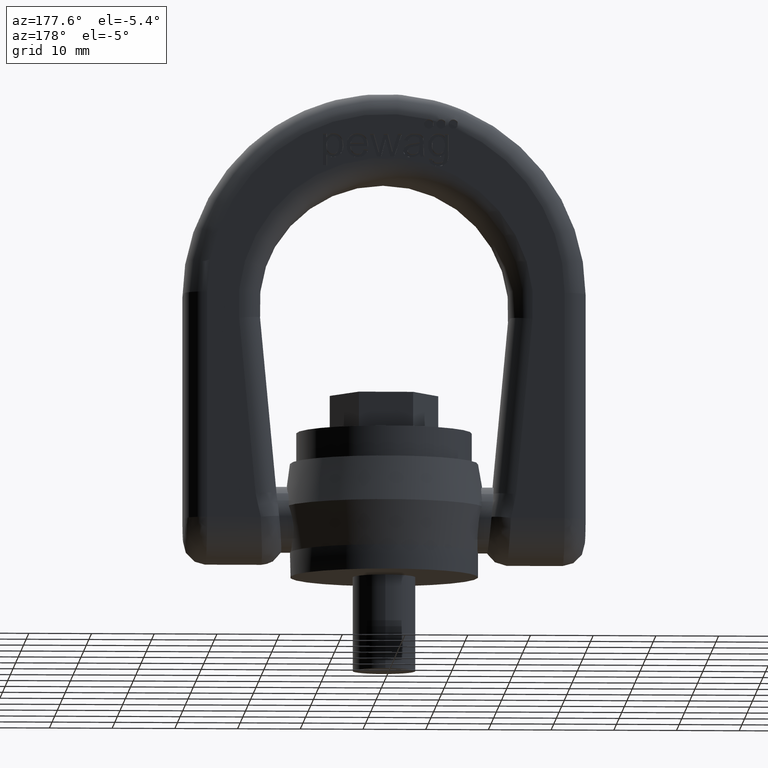
[diagram: clean part render]
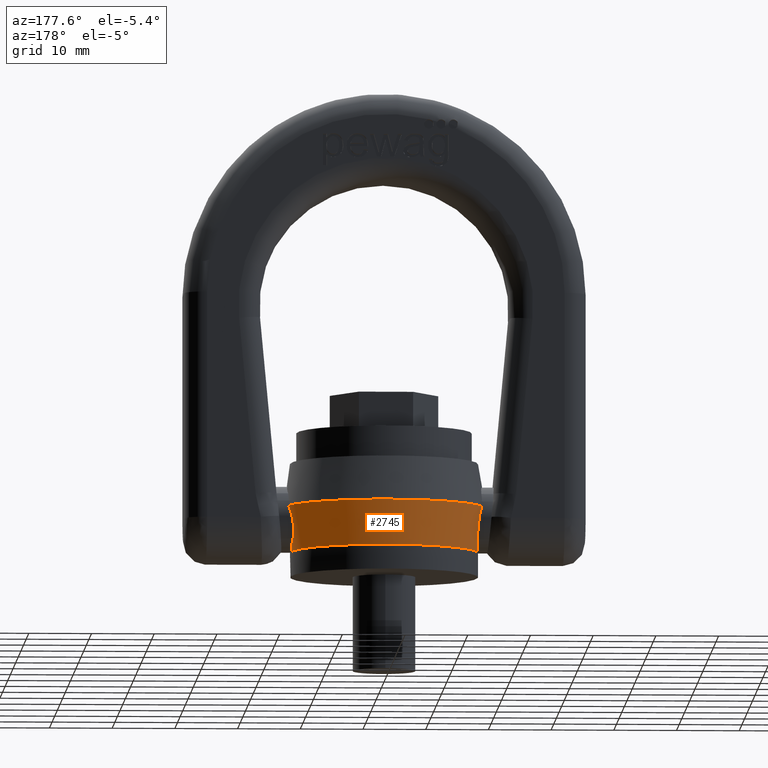
[diagram: same view with one face highlighted and labeled with its STEP entity id]
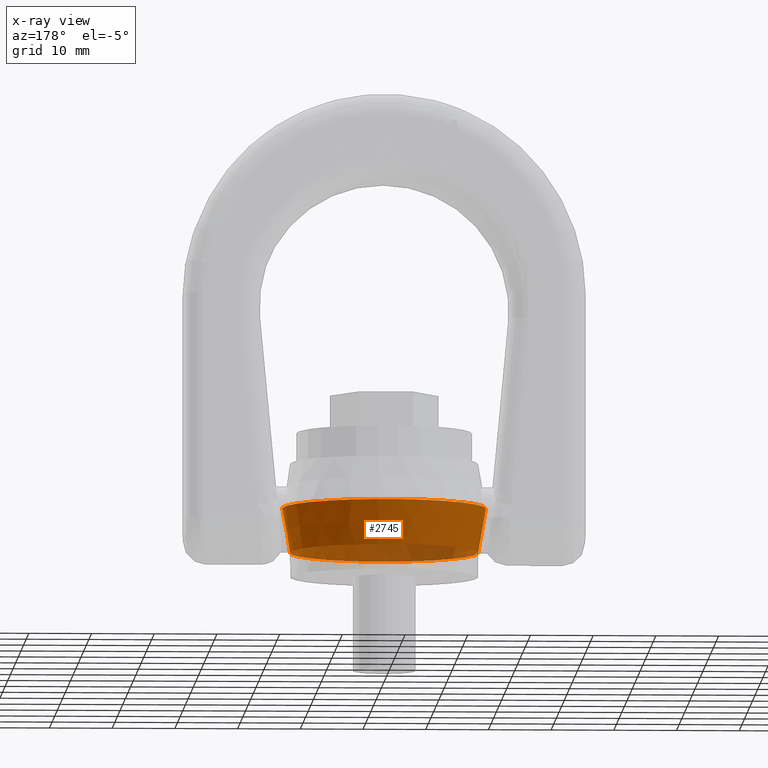
[diagram: x-ray of the same camera — body ghosted, the highlighted face saturated]
A machine part, auxiliary view. The second image highlights one B-rep face of the part: STEP entity #2745.
The next image is the same camera in x-ray: the body ghosted, the highlighted face saturated — about 22% of this face is hidden behind the body in this view.
In plain terms, the highlighted conical surface has half-angle 10 deg.
Its self-contained STEP definition (entity closure, byte-faithful):
#2411=CONICAL_SURFACE('',#5625,15.,10.);
#2745=ADVANCED_FACE('',(#3009,#3010),#2411,.T.);
#3009=FACE_BOUND('',#3070,.T.);
#3010=FACE_BOUND('',#3071,.T.);
#3070=EDGE_LOOP('',(#3344));
#3071=EDGE_LOOP('',(#3345));
#3344=ORIENTED_EDGE('',*,*,#4955,.T.);
#3345=ORIENTED_EDGE('',*,*,#4951,.F.);
#4549=VERTEX_POINT('',#6616);
#4553=VERTEX_POINT('',#6628);
#4951=EDGE_CURVE('',#4549,#4549,#5557,.T.);
#4955=EDGE_CURVE('',#4553,#4553,#5561,.T.);
#5557=CIRCLE('',#5616,15.);
#5561=CIRCLE('',#5624,16.2519215630301);
#5616=AXIS2_PLACEMENT_3D('',#6615,#5826,#5827);
#5624=AXIS2_PLACEMENT_3D('',#6627,#5842,#5843);
#5625=AXIS2_PLACEMENT_3D('',#6629,#5844,#5845);
#5826=DIRECTION('',(0.,0.,-1.));
#5827=DIRECTION('',(-1.,0.,0.));
#5842=DIRECTION('',(0.,0.,-1.));
#5843=DIRECTION('',(-1.,0.,0.));
#5844=DIRECTION('',(0.,0.,1.));
#5845=DIRECTION('',(1.,0.,7.48011003143137E-17));
#6615=CARTESIAN_POINT('',(0.,0.,3.9));
#6616=CARTESIAN_POINT('',(-15.,0.,3.9));
#6627=CARTESIAN_POINT('',(0.,0.,11.));
#6628=CARTESIAN_POINT('',(-16.2519215630301,0.,11.));
#6629=CARTESIAN_POINT('',(0.,0.,3.9));